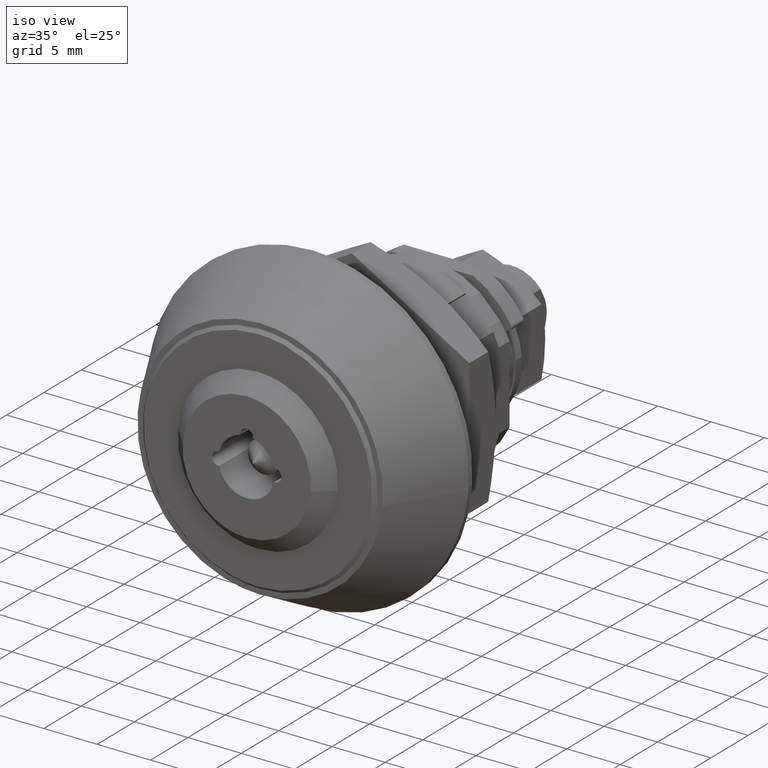
[diagram: clean part render]
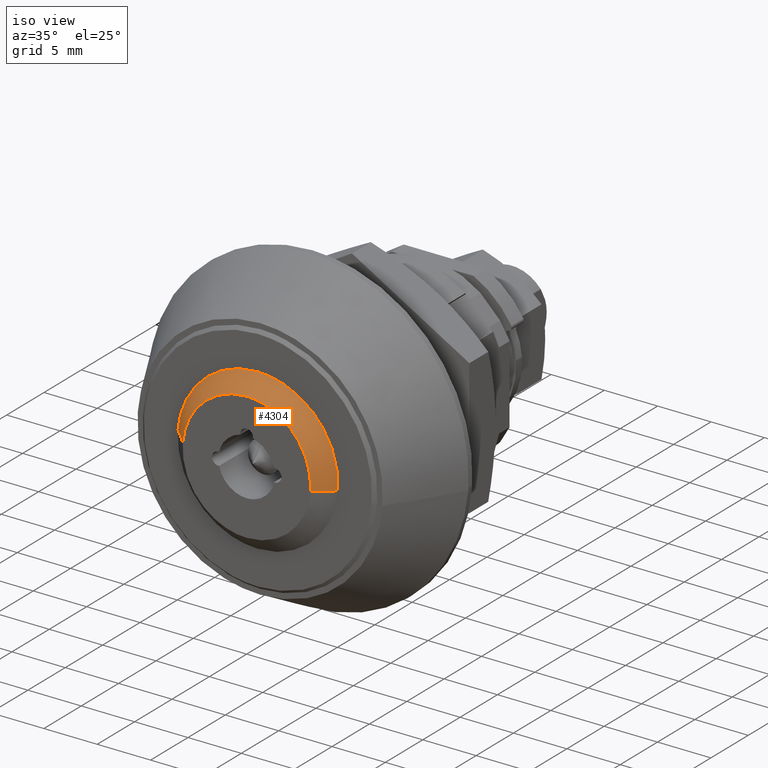
[diagram: same view with one face highlighted and labeled with its STEP entity id]
A machine part, iso view. The second image highlights one B-rep face of the part: STEP entity #4304.
In plain terms, the highlighted face is a freeform B-spline surface patch.
Its self-contained STEP definition (entity closure, byte-faithful):
#4206=CARTESIAN_POINT('',(-0.037499999999997,5.944119602383775,0.467812358277279));
#4207=CARTESIAN_POINT('',(-0.037499999999997,5.476307244106495,6.411931960661054));
#4208=CARTESIAN_POINT('',(-0.037499999999997,-0.467812358277279,5.944119602383775));
#4209=CARTESIAN_POINT('',(-0.037499999999997,-6.411931960661054,5.476307244106495));
#4210=CARTESIAN_POINT('',(-0.037499999999997,-5.944119602383775,-0.467812358277279));
#4211=CARTESIAN_POINT('',(1.538437499999883,7.515199013013798,0.591458989450879));
#4212=CARTESIAN_POINT('',(1.538437499999884,6.923740023562919,8.106658002464677));
#4213=CARTESIAN_POINT('',(1.538437499999883,-0.591458989450879,7.515199013013798));
#4214=CARTESIAN_POINT('',(1.538437499999884,-8.106658002464677,6.923740023562919));
#4215=CARTESIAN_POINT('',(1.538437499999883,-7.515199013013798,-0.591458989450879));
#4223=(BOUNDED_SURFACE()B_SPLINE_SURFACE(2,1,((#4206,#4211),(#4207,#4212),(#4208,#4213),(#4209,#4214),(#4210,#4215)),.UNSPECIFIED.,.F.,.F.,.U.)B_SPLINE_SURFACE_WITH_KNOTS((3,2,3),(2,2),(0.0,12.490092206407670,24.980184412815341),(0.0,2.228712185952245),.UNSPECIFIED.)GEOMETRIC_REPRESENTATION_ITEM()RATIONAL_B_SPLINE_SURFACE(((1.0,1.0),(0.707106781186548,0.707106781186548),(1.0,1.0),(0.707106781186548,0.707106781186548),(1.0,1.0)))REPRESENTATION_ITEM('')SURFACE());
#4224=CARTESIAN_POINT('',(1.499999999999886,0.0,7.500000000000000));
#4225=VERTEX_POINT('',#4224);
#4226=CARTESIAN_POINT('',(1.500000000002678,7.476880002999566,0.588443217980188));
#4227=VERTEX_POINT('',#4226);
#4228=CARTESIAN_POINT('',(1.499999999999886,0.0,7.500000000000000));
#4229=CARTESIAN_POINT('',(1.499999999999887,6.932928687397243,7.499999999999999));
#4230=CARTESIAN_POINT('',(1.500000000002678,7.476880002999566,0.588443217980188));
#4238=(BOUNDED_CURVE()B_SPLINE_CURVE(2,(#4228,#4229,#4230),.UNSPECIFIED.,.F.,.U.)B_SPLINE_CURVE_WITH_KNOTS((3,3),(0.0,0.236331300631798),.UNSPECIFIED.)CURVE()GEOMETRIC_REPRESENTATION_ITEM()RATIONAL_B_SPLINE_CURVE((1.0,0.723120658606332,0.969723356169793))REPRESENTATION_ITEM(''));
#4239=EDGE_CURVE('',#4225,#4227,#4238,.T.);
#4240=ORIENTED_EDGE('',*,*,#4239,.T.);
#4241=CARTESIAN_POINT('',(6.353425E-012,5.981504002401306,0.470754574415794));
#4242=VERTEX_POINT('',#4241);
#4243=CARTESIAN_POINT('',(6.353425E-012,5.981504002401306,0.470754574415794));
#4244=CARTESIAN_POINT('',(1.500000000002678,7.476880002999566,0.588443217980188));
#4245=QUASI_UNIFORM_CURVE('',1,(#4243,#4244),.UNSPECIFIED.,.F.,.U.);
#4246=EDGE_CURVE('',#4242,#4227,#4245,.T.);
#4247=ORIENTED_EDGE('',*,*,#4246,.F.);
#4248=CARTESIAN_POINT('',(0.0,0.0,6.0));
#4249=VERTEX_POINT('',#4248);
#4250=CARTESIAN_POINT('',(0.0,0.0,6.0));
#4251=CARTESIAN_POINT('',(0.0,5.546342949859533,6.000000000000002));
#4252=CARTESIAN_POINT('',(6.353425E-012,5.981504002401306,0.470754574415794));
#4260=(BOUNDED_CURVE()B_SPLINE_CURVE(2,(#4250,#4251,#4252),.UNSPECIFIED.,.F.,.U.)B_SPLINE_CURVE_WITH_KNOTS((3,3),(0.0,0.236331300630003),.UNSPECIFIED.)CURVE()GEOMETRIC_REPRESENTATION_ITEM()RATIONAL_B_SPLINE_CURVE((1.0,0.723120658608435,0.969723356166047))REPRESENTATION_ITEM(''));
#4261=EDGE_CURVE('',#4249,#4242,#4260,.T.);
#4262=ORIENTED_EDGE('',*,*,#4261,.F.);
#4263=CARTESIAN_POINT('',(6.353598E-012,-5.981504002401306,-0.470754574415794));
#4264=VERTEX_POINT('',#4263);
#4265=CARTESIAN_POINT('',(6.353598E-012,-5.981504002401306,-0.470754574415794));
#4266=CARTESIAN_POINT('',(0.0,-6.0,-0.235740642094466));
#4267=CARTESIAN_POINT('',(0.0,-6.0,0.0));
#4268=CARTESIAN_POINT('',(0.0,-6.0,6.0));
#4269=CARTESIAN_POINT('',(0.0,0.0,6.0));
#4277=(BOUNDED_CURVE()B_SPLINE_CURVE(2,(#4265,#4266,#4267,#4268,#4269),.UNSPECIFIED.,.F.,.U.)B_SPLINE_CURVE_WITH_KNOTS((3,2,3),(0.736331300630003,0.750000000000000,1.0),.UNSPECIFIED.)CURVE()GEOMETRIC_REPRESENTATION_ITEM()RATIONAL_B_SPLINE_CURVE((0.969723356166047,0.983986122578112,1.0,0.707106781186548,1.0))REPRESENTATION_ITEM(''));
#4278=EDGE_CURVE('',#4264,#4249,#4277,.T.);
#4279=ORIENTED_EDGE('',*,*,#4278,.F.);
#4280=CARTESIAN_POINT('',(1.500000000002678,-7.476880002999566,-0.588443217980188));
#4281=VERTEX_POINT('',#4280);
#4282=CARTESIAN_POINT('',(6.353598E-012,-5.981504002401306,-0.470754574415794));
#4283=CARTESIAN_POINT('',(1.500000000002678,-7.476880002999566,-0.588443217980188));
#4284=QUASI_UNIFORM_CURVE('',1,(#4282,#4283),.UNSPECIFIED.,.F.,.U.);
#4285=EDGE_CURVE('',#4264,#4281,#4284,.T.);
#4286=ORIENTED_EDGE('',*,*,#4285,.T.);
#4287=CARTESIAN_POINT('',(1.500000000002678,-7.476880002999566,-0.588443217980188));
#4288=CARTESIAN_POINT('',(1.499999999999886,-7.500000000000001,-0.294675802578751));
#4289=CARTESIAN_POINT('',(1.499999999999886,-7.500000000000000,0.0));
#4290=CARTESIAN_POINT('',(1.499999999999887,-7.500000000000000,7.500000000000000));
#4291=CARTESIAN_POINT('',(1.499999999999886,0.0,7.500000000000000));
#4299=(BOUNDED_CURVE()B_SPLINE_CURVE(2,(#4287,#4288,#4289,#4290,#4291),.UNSPECIFIED.,.F.,.U.)B_SPLINE_CURVE_WITH_KNOTS((3,2,3),(0.736331300631798,0.750000000000000,1.0),.UNSPECIFIED.)CURVE()GEOMETRIC_REPRESENTATION_ITEM()RATIONAL_B_SPLINE_CURVE((0.969723356169793,0.983986122580216,1.0,0.707106781186547,1.0))REPRESENTATION_ITEM(''));
#4300=EDGE_CURVE('',#4281,#4225,#4299,.T.);
#4301=ORIENTED_EDGE('',*,*,#4300,.T.);
#4302=EDGE_LOOP('',(#4240,#4247,#4262,#4279,#4286,#4301));
#4303=FACE_OUTER_BOUND('',#4302,.T.);
#4304=ADVANCED_FACE('',(#4303),#4223,.T.);